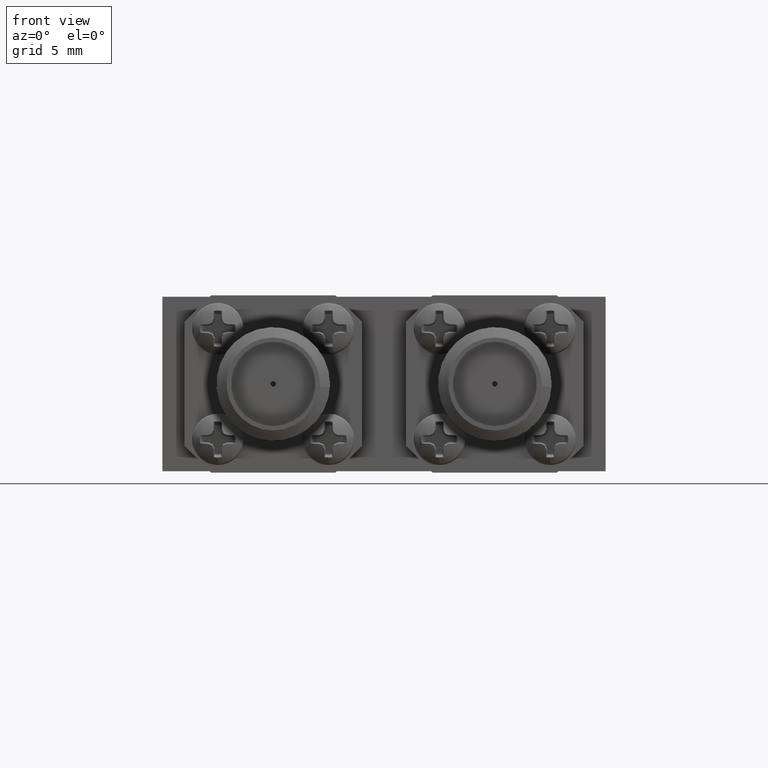
[diagram: clean part render]
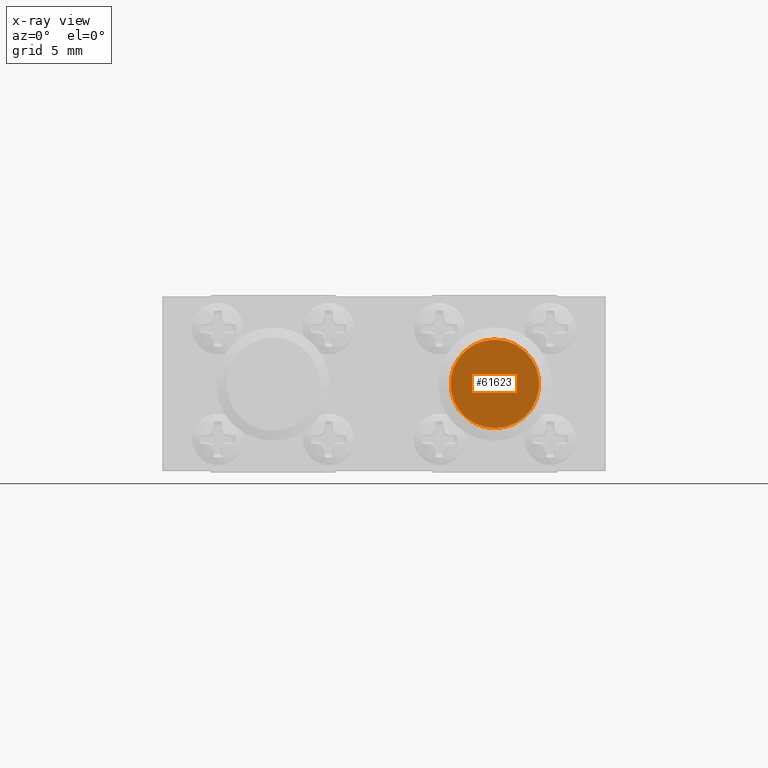
[diagram: x-ray — body ghosted, one internal face saturated and labeled with its STEP entity id]
A machine part, front view, then the same camera in x-ray: the body is ghosted and one INTERNAL B-rep face — a face not visible from any outside direction — is saturated and labeled: STEP entity #61623.
In plain terms, the highlighted planar face has unit normal (0, 1, 0).
Its self-contained STEP definition (entity closure, byte-faithful):
#2400 = DIRECTION ( 'NONE',  ( 0.0000000000000000000, 0.0000000000000000000, -1.000000000000000000 ) ) ;
#3744 = CARTESIAN_POINT ( 'NONE',  ( 0.2499999999999998300, -0.2500000000000000600, 0.1968503937007874700 ) ) ;
#4875 = VERTEX_POINT ( 'NONE', #30244 ) ;
#8062 = ORIENTED_EDGE ( 'NONE', *, *, #35523, .T. ) ;
#11209 = DIRECTION ( 'NONE',  ( 0.0000000000000000000, 0.0000000000000000000, -1.000000000000000000 ) ) ;
#13978 = EDGE_LOOP ( 'NONE', ( #8062, #68171 ) ) ;
#16890 = VERTEX_POINT ( 'NONE', #49710 ) ;
#21704 = EDGE_CURVE ( 'NONE', #60048, #16890, #58038, .T. ) ;
#22856 = DIRECTION ( 'NONE',  ( 0.0000000000000000000, 0.0000000000000000000, -1.000000000000000000 ) ) ;
#24274 = DIRECTION ( 'NONE',  ( 0.0000000000000000000, 1.000000000000000000, 0.0000000000000000000 ) ) ;
#29311 = PLANE ( 'NONE',  #67203 ) ;
#30244 = CARTESIAN_POINT ( 'NONE',  ( 0.2499999999999998300, -0.2500000000000000600, 0.2968503937007874700 ) ) ;
#30800 = CARTESIAN_POINT ( 'NONE',  ( 0.2499999999999998300, -0.2500000000000000600, 0.1968503937007874700 ) ) ;
#31519 = EDGE_CURVE ( 'NONE', #76569, #4875, #62811, .T. ) ;
#35523 = EDGE_CURVE ( 'NONE', #4875, #76569, #58812, .T. ) ;
#35558 = CARTESIAN_POINT ( 'NONE',  ( 0.2499999999999998300, -0.2500000000000000600, 0.1968503937007874700 ) ) ;
#36021 = FACE_OUTER_BOUND ( 'NONE', #13978, .T. ) ;
#36589 = AXIS2_PLACEMENT_3D ( 'NONE', #77163, #39787, #2400 ) ;
#39019 = FACE_BOUND ( 'NONE', #65214, .T. ) ;
#39787 = DIRECTION ( 'NONE',  ( 0.0000000000000000000, 1.000000000000000000, 0.0000000000000000000 ) ) ;
#39842 = CARTESIAN_POINT ( 'NONE',  ( 0.2499999999999998300, -0.2500000000000000600, 0.1908503937007874900 ) ) ;
#41923 = AXIS2_PLACEMENT_3D ( 'NONE', #3744, #65978, #22856 ) ;
#42089 = DIRECTION ( 'NONE',  ( 0.0000000000000000000, 1.000000000000000000, 0.0000000000000000000 ) ) ;
#45814 = EDGE_CURVE ( 'NONE', #16890, #60048, #54934, .T. ) ;
#48096 = CARTESIAN_POINT ( 'NONE',  ( 0.2499999999999998300, -0.2500000000000000600, 0.1968503937007874700 ) ) ;
#48133 = DIRECTION ( 'NONE',  ( -0.0000000000000000000, 0.0000000000000000000, -1.000000000000000000 ) ) ;
#49710 = CARTESIAN_POINT ( 'NONE',  ( 0.2499999999999998300, -0.2500000000000000600, 0.2028503937007874700 ) ) ;
#52568 = CARTESIAN_POINT ( 'NONE',  ( 0.2499999999999998300, -0.2500000000000000600, 0.09685039370078747700 ) ) ;
#52867 = ORIENTED_EDGE ( 'NONE', *, *, #21704, .F. ) ;
#54934 = CIRCLE ( 'NONE', #41923, 0.005999999999999983600 ) ;
#58038 = CIRCLE ( 'NONE', #36589, 0.005999999999999983600 ) ;
#58812 = CIRCLE ( 'NONE', #63763, 0.1000000000000000100 ) ;
#60048 = VERTEX_POINT ( 'NONE', #39842 ) ;
#61623 = ADVANCED_FACE ( 'NONE', ( #39019, #36021 ), #29311, .T. ) ;
#62811 = CIRCLE ( 'NONE', #62914, 0.1000000000000000100 ) ;
#62914 = AXIS2_PLACEMENT_3D ( 'NONE', #48096, #42089, #11209 ) ;
#63763 = AXIS2_PLACEMENT_3D ( 'NONE', #30800, #24274, #74467 ) ;
#65214 = EDGE_LOOP ( 'NONE', ( #65730, #52867 ) ) ;
#65730 = ORIENTED_EDGE ( 'NONE', *, *, #45814, .F. ) ;
#65978 = DIRECTION ( 'NONE',  ( 0.0000000000000000000, 1.000000000000000000, 0.0000000000000000000 ) ) ;
#67203 = AXIS2_PLACEMENT_3D ( 'NONE', #35558, #72987, #48133 ) ;
#68171 = ORIENTED_EDGE ( 'NONE', *, *, #31519, .T. ) ;
#72987 = DIRECTION ( 'NONE',  ( 0.0000000000000000000, 1.000000000000000000, 0.0000000000000000000 ) ) ;
#74467 = DIRECTION ( 'NONE',  ( 0.0000000000000000000, 0.0000000000000000000, -1.000000000000000000 ) ) ;
#76569 = VERTEX_POINT ( 'NONE', #52568 ) ;
#77163 = CARTESIAN_POINT ( 'NONE',  ( 0.2499999999999998300, -0.2500000000000000600, 0.1968503937007874700 ) ) ;